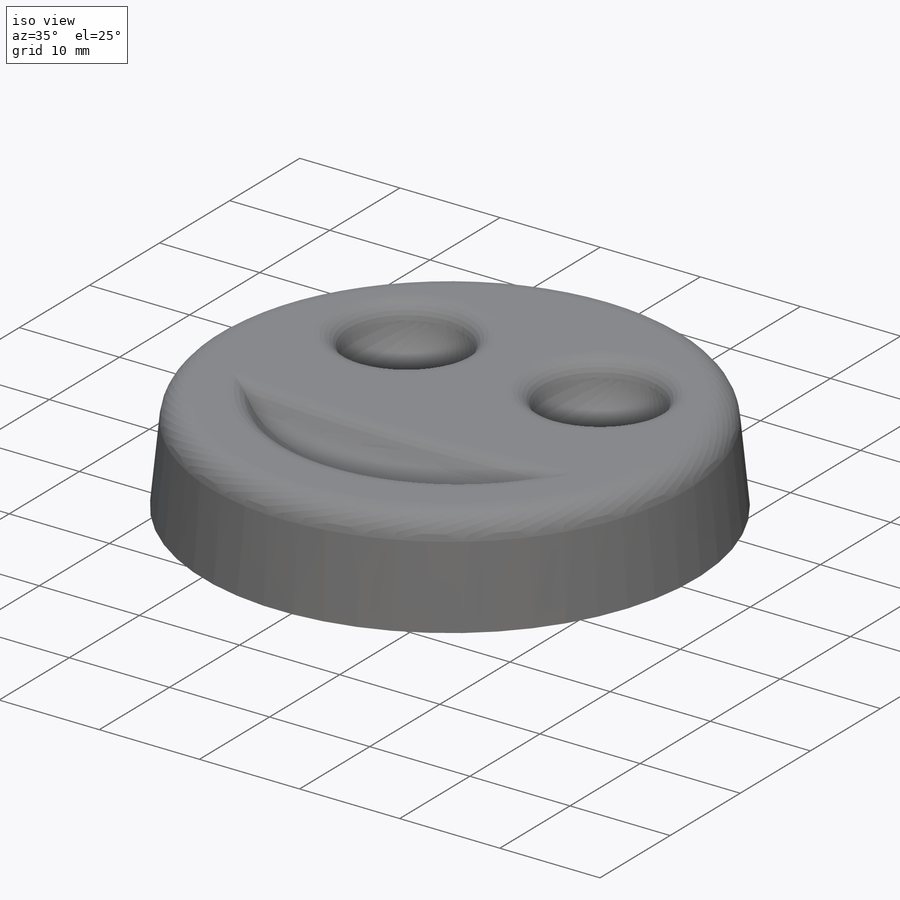
[diagram: iso view]
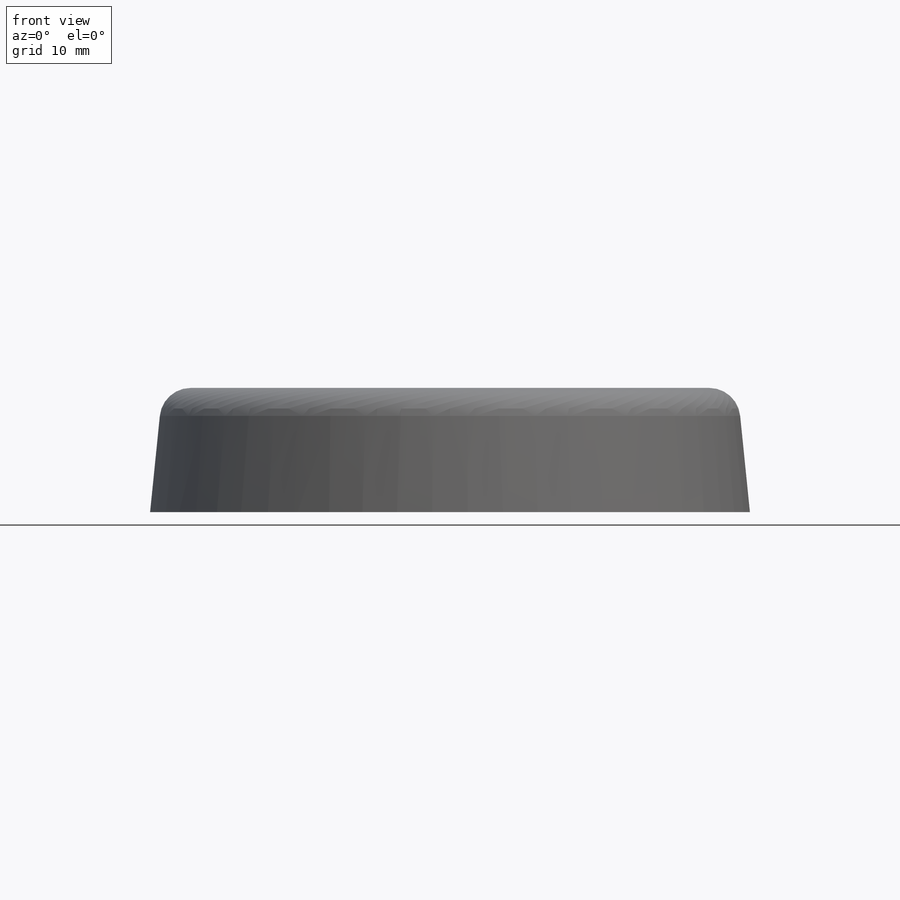
[diagram: front view]
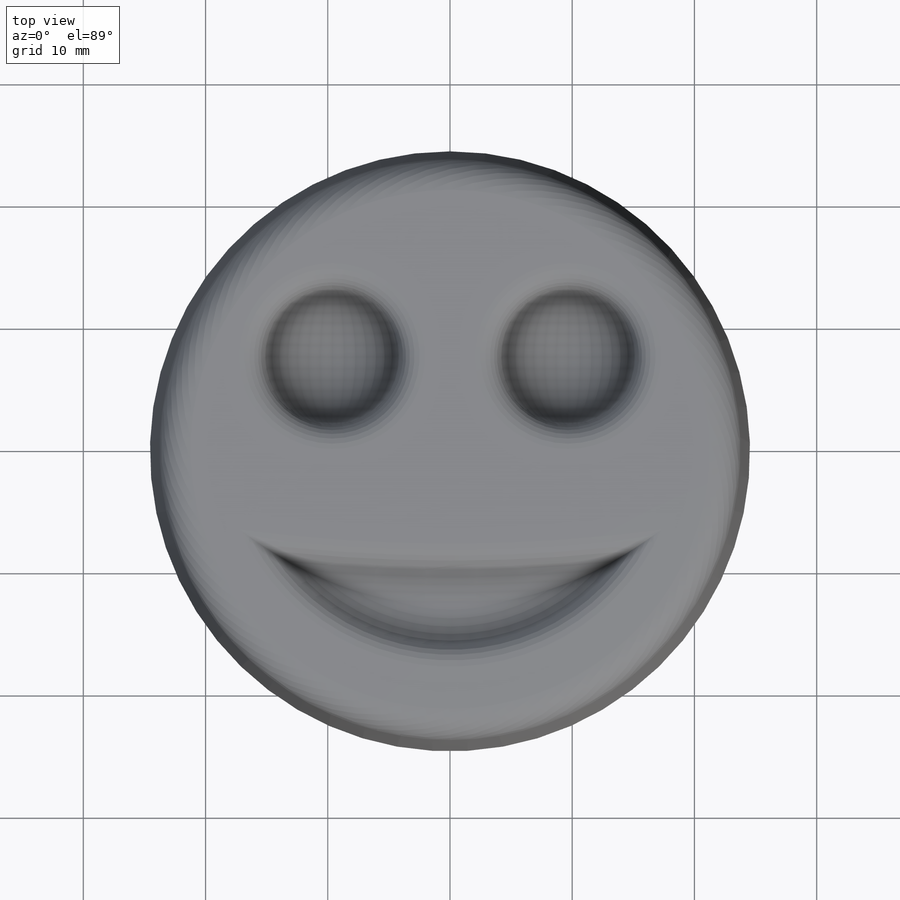
[diagram: top view]
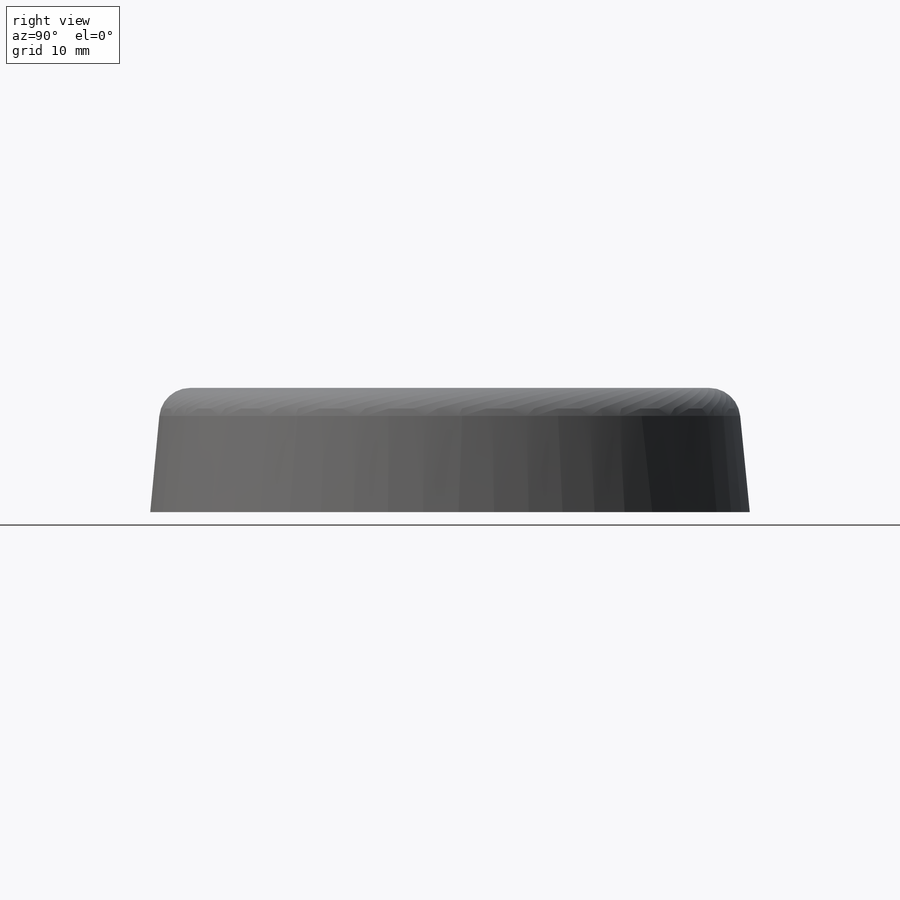
[diagram: right view]
SOLIDWORKS PART (.sldprt)
format: sldprt  version: not decoded by parser v0  size: 254,464 bytes
history: native  units: mm
features: fillet x5, sketch x3, cut_extrude x2, material x1, revolve x1 (+15 scaffold rows collapsed)
feature tree (27):
  scaffold x15  (default folders/planes/origin — collapsed)
  material  "Material <not specified>"
  sketch  "Sketch1"  dims[D1=25.4mm D2=10.16mm D3=24.384mm D4=24.384mm]
  revolve  "Revolve1"  Angle=360deg
  fillet  "Fillet1"  Radius=2.54mm
  sketch  "Sketch2"  dims[D1=~6.084965mm]
  cut_extrude  "Cut-Extrude1"  Depth=5.842mm
  fillet  "Fillet2"  Radius=5.842mm
  sketch  "Sketch3"  dims[c1.D1=12.446mm c1.D2=12.446mm c2.D1=14.986mm c2.D2=14.986mm]
  cut_extrude  "Cut-Extrude3"  Depth=2.54mm
  fillet  "Fillet5"  Radius=3.556mm
  fillet  "Fillet7"  Radius=2.032mm
  fillet  "Fillet8"  Radius=2.032mm
decode coverage: 11 of 11 modeling features carry decoded parameters
note: ~ marks probable driven/reference dimensions
note: suppression state not decoded; provenance and decode notes live in map.json
